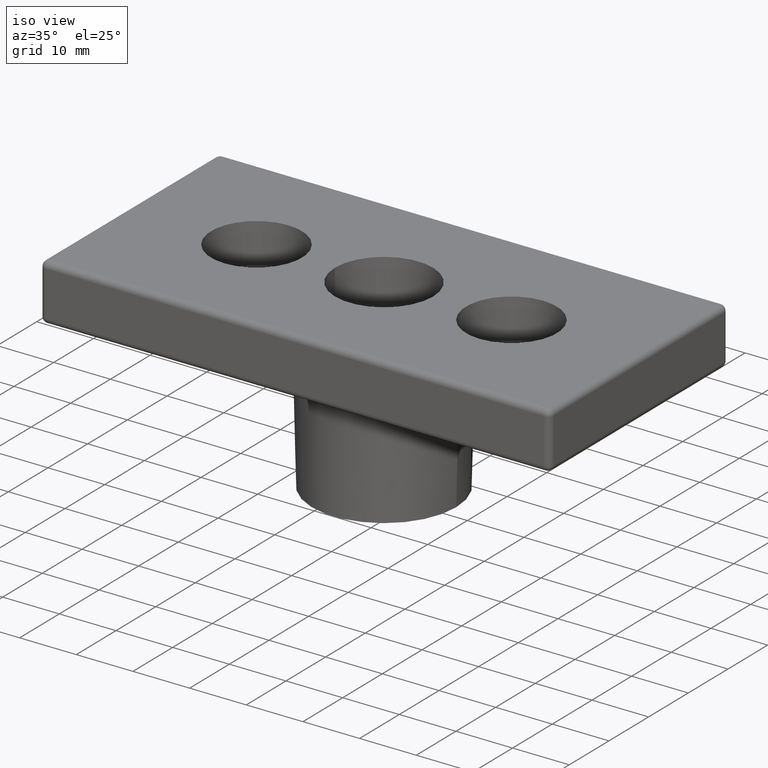
[diagram: clean part render]
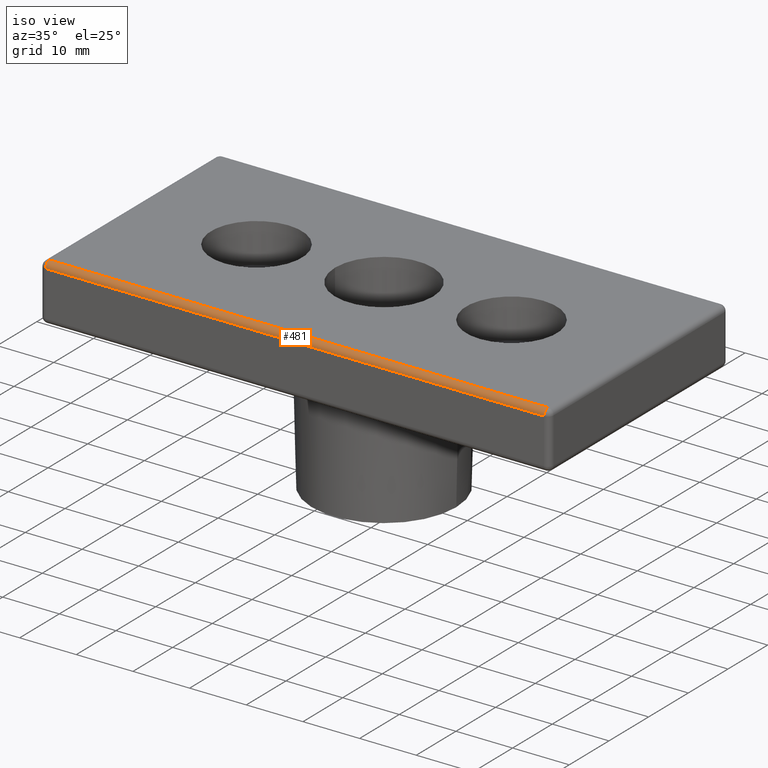
[diagram: same view with one face highlighted and labeled with its STEP entity id]
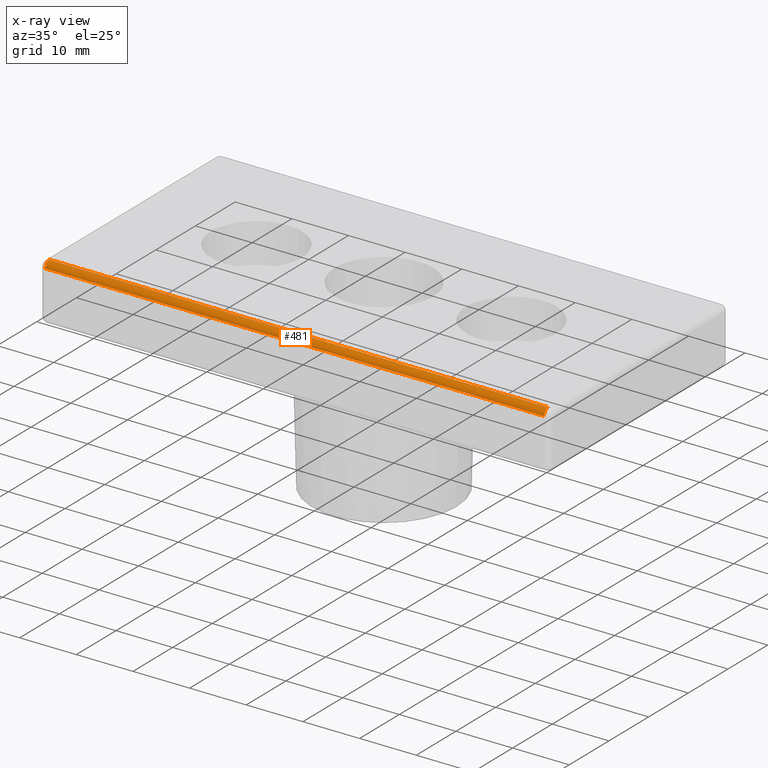
[diagram: x-ray of the same camera — body ghosted, the highlighted face saturated]
A machine part, iso view. The second image highlights one B-rep face of the part: STEP entity #481.
The next image is the same camera in x-ray: the body ghosted, the highlighted face saturated — about 0% of this face is hidden behind the body in this view.
In plain terms, the highlighted cylindrical surface (edge-blend (fillet) strip) has radius 1 mm, axis along (-1, 0, 0).
Its self-contained STEP definition (entity closure, byte-faithful):
#23=LINE('',#761,#47);
#44=LINE('',#808,#68);
#47=VECTOR('',#600,87.999999998859);
#68=VECTOR('',#631,88.);
#127=FACE_OUTER_BOUND('',#177,.T.);
#177=EDGE_LOOP('',(#419,#420,#421,#422));
#210=CIRCLE('',#544,1.);
#214=CIRCLE('',#552,1.);
#229=VERTEX_POINT('',#759);
#230=VERTEX_POINT('',#760);
#250=VERTEX_POINT('',#805);
#251=VERTEX_POINT('',#807);
#265=EDGE_CURVE('',#229,#230,#23,.T.);
#286=EDGE_CURVE('',#250,#251,#44,.T.);
#306=EDGE_CURVE('',#229,#251,#210,.T.);
#310=EDGE_CURVE('',#230,#250,#214,.T.);
#419=ORIENTED_EDGE('',*,*,#306,.T.);
#420=ORIENTED_EDGE('',*,*,#286,.F.);
#421=ORIENTED_EDGE('',*,*,#310,.F.);
#422=ORIENTED_EDGE('',*,*,#265,.F.);
#448=CYLINDRICAL_SURFACE('',#551,1.);
#481=ADVANCED_FACE('',(#127),#448,.T.);
#544=AXIS2_PLACEMENT_3D('',#844,#698,#699);
#551=AXIS2_PLACEMENT_3D('',#851,#712,#713);
#552=AXIS2_PLACEMENT_3D('',#852,#714,#715);
#600=DIRECTION('',(-1.,0.,0.));
#631=DIRECTION('',(1.,0.,0.));
#698=DIRECTION('center_axis',(-1.,0.,0.));
#699=DIRECTION('ref_axis',(0.,0.,-1.));
#712=DIRECTION('center_axis',(-1.,0.,0.));
#713=DIRECTION('ref_axis',(0.,0.707106781186548,-0.707106781186547));
#714=DIRECTION('center_axis',(-1.,0.,0.));
#715=DIRECTION('ref_axis',(0.,0.,1.));
#759=CARTESIAN_POINT('',(-0.707106781738327,-22.5,8.70710678063477));
#760=CARTESIAN_POINT('',(-88.7071067805973,-22.5,8.7071067805973));
#761=CARTESIAN_POINT('',(-0.70710678118655,-22.5,8.70710678118655));
#805=CARTESIAN_POINT('',(-88.7071067811865,-21.5,9.70710678118655));
#807=CARTESIAN_POINT('',(-0.707106781186535,-21.5,9.70710678118655));
#808=CARTESIAN_POINT('',(-88.7071067811865,-21.5,9.70710678118655));
#844=CARTESIAN_POINT('Origin',(-0.70710678118655,-21.5,8.70710678118655));
#851=CARTESIAN_POINT('Origin',(-0.707106771186546,-21.5,8.70710678118655));
#852=CARTESIAN_POINT('Origin',(-88.7071067811865,-21.5,8.70710678118655));